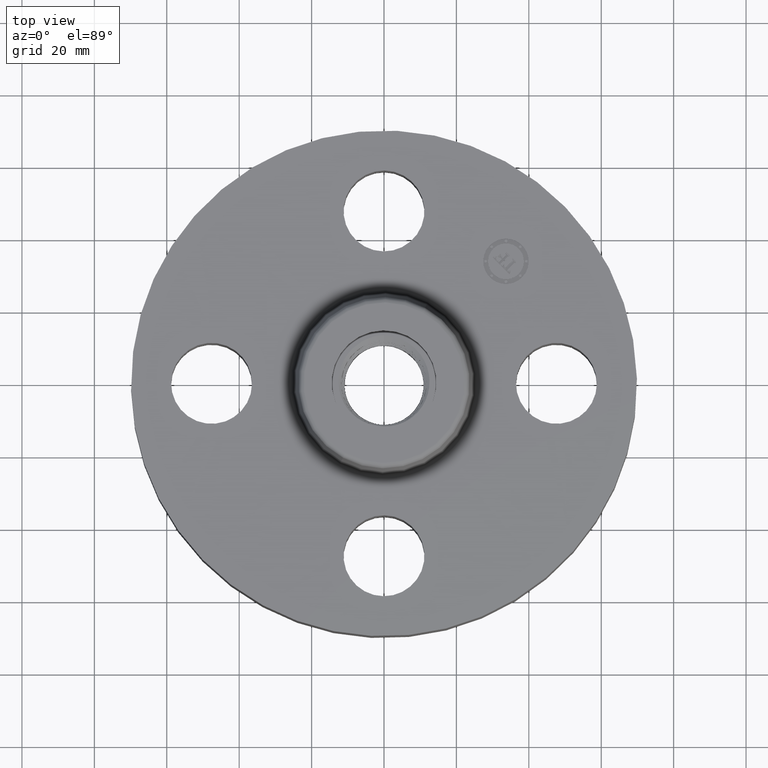
[diagram: clean part render]
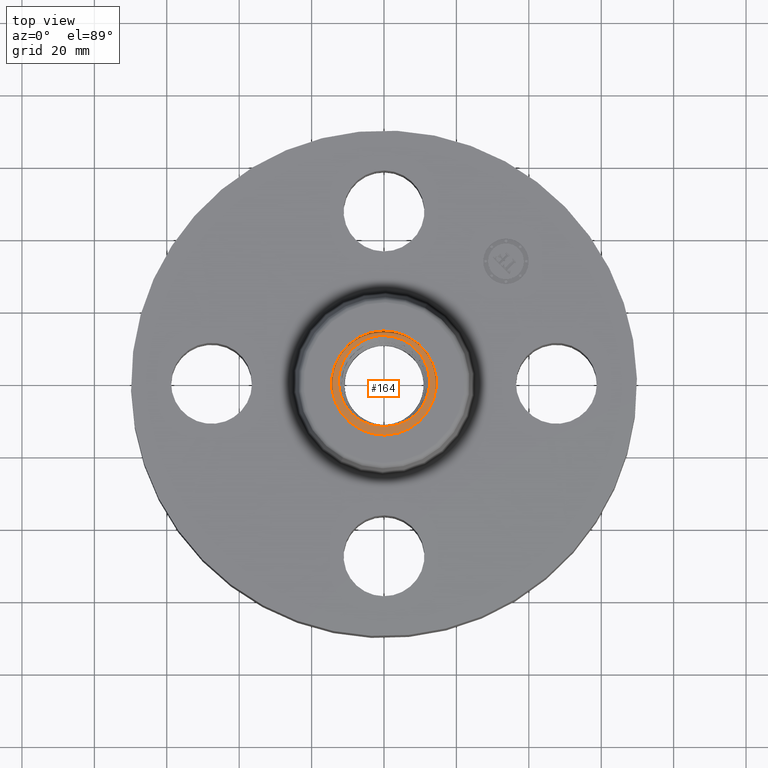
[diagram: same view with one face highlighted and labeled with its STEP entity id]
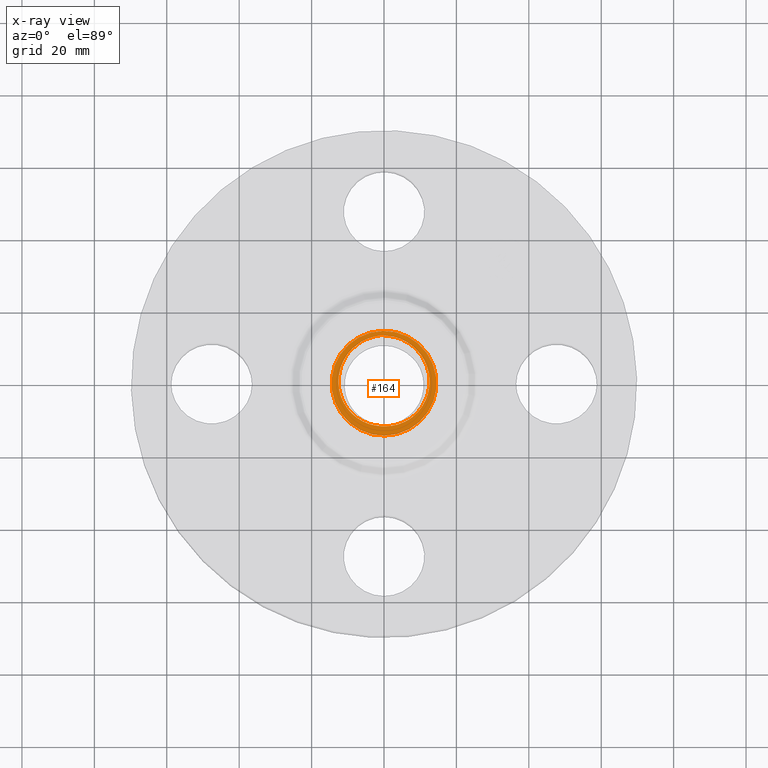
[diagram: x-ray of the same camera — body ghosted, the highlighted face saturated]
A machine part, top view. The second image highlights one B-rep face of the part: STEP entity #164.
The next image is the same camera in x-ray: the body ghosted, the highlighted face saturated — about 0% of this face is hidden behind the body in this view.
In plain terms, the highlighted planar face has unit normal (0, 0, 1).
Its self-contained STEP definition (entity closure, byte-faithful):
#38=AXIS2_PLACEMENT_3D('Plane Axis2P3D',#35,#36,#37) ;
#42=AXIS2_PLACEMENT_3D('Circle Axis2P3D',#40,#41,$) ;
#51=AXIS2_PLACEMENT_3D('Circle Axis2P3D',#49,#50,$) ;
#60=AXIS2_PLACEMENT_3D('Circle Axis2P3D',#58,#59,$) ;
#35=CARTESIAN_POINT('Axis2P3D Location',(1.92322098754E-017,-2.08057543197E-016,1.25000000001)) ;
#40=CARTESIAN_POINT('Axis2P3D Location',(0.,0.,1.25000000001)) ;
#44=CARTESIAN_POINT('Vertex',(-0.273272557005,0.50022206028,1.25000000001)) ;
#46=CARTESIAN_POINT('Vertex',(0.273272557005,-0.50022206028,1.25000000001)) ;
#49=CARTESIAN_POINT('Axis2P3D Location',(0.,0.,1.25000000001)) ;
#58=CARTESIAN_POINT('Axis2P3D Location',(-5.07030987624E-017,7.16836913538E-017,1.25000000001)) ;
#62=CARTESIAN_POINT('Vertex',(-0.069043719654,-0.462157826069,1.25000036715)) ;
#64=CARTESIAN_POINT('Vertex',(-0.000953108750206,-0.467285750138,1.25000000001)) ;
#68=CARTESIAN_POINT('Control Point',(-0.246883430185,0.451920611165,1.25000000001)) ;
#69=CARTESIAN_POINT('Control Point',(-0.286897721288,0.428091764779,1.25000000001)) ;
#70=CARTESIAN_POINT('Control Point',(-0.324134164533,0.39978522905,1.25000000001)) ;
#71=CARTESIAN_POINT('Control Point',(-0.357909097019,0.367424164858,1.25000000001)) ;
#72=CARTESIAN_POINT('Control Point',(-0.41739037116,0.295739702515,1.25000000001)) ;
#73=CARTESIAN_POINT('Control Point',(-0.459012659296,0.212869246546,1.25000000001)) ;
#74=CARTESIAN_POINT('Control Point',(-0.474939777486,0.169300916148,1.25000000001)) ;
#75=CARTESIAN_POINT('Control Point',(-0.494318448314,0.088471184542,1.25000000001)) ;
#76=CARTESIAN_POINT('Control Point',(-0.496710871425,0.00589266827897,1.25000000001)) ;
#77=CARTESIAN_POINT('Control Point',(-0.494375922911,-0.030741260447,1.25000000001)) ;
#78=CARTESIAN_POINT('Control Point',(-0.481550266371,-0.112067598689,1.25000000001)) ;
#79=CARTESIAN_POINT('Control Point',(-0.452253683746,-0.188866047166,1.25000000001)) ;
#80=CARTESIAN_POINT('Control Point',(-0.431112140617,-0.229337546742,1.25000000001)) ;
#81=CARTESIAN_POINT('Control Point',(-0.379905222728,-0.304441643625,1.25000000001)) ;
#82=CARTESIAN_POINT('Control Point',(-0.313085125797,-0.365392447663,1.25000000001)) ;
#83=CARTESIAN_POINT('Control Point',(-0.276305974449,-0.391734973764,1.25000000001)) ;
#84=CARTESIAN_POINT('Control Point',(-0.213661400389,-0.426235955735,1.25000000001)) ;
#85=CARTESIAN_POINT('Control Point',(-0.146262797866,-0.448323542736,1.25000000001)) ;
#86=CARTESIAN_POINT('Control Point',(-0.120794609709,-0.454743018172,1.25000000001)) ;
#87=CARTESIAN_POINT('Control Point',(-0.0949981273021,-0.459359125903,1.25000000001)) ;
#88=CARTESIAN_POINT('Control Point',(-0.0690436256154,-0.462157284984,1.25000000001)) ;
#89=CARTESIAN_POINT('Vertex',(-0.246883430185,0.451920611165,1.25000000001)) ;
#93=CARTESIAN_POINT('Control Point',(-0.0411589334474,0.521391750802,1.25000000001)) ;
#94=CARTESIAN_POINT('Control Point',(-0.0847802820581,0.516338577077,1.25000000001)) ;
#95=CARTESIAN_POINT('Control Point',(-0.12779164867,0.506712849105,1.25000000001)) ;
#96=CARTESIAN_POINT('Control Point',(-0.16955898748,0.492597924966,1.25000000001)) ;
#97=CARTESIAN_POINT('Control Point',(-0.209437574823,0.474219932607,1.25000000001)) ;
#98=CARTESIAN_POINT('Control Point',(-0.246883430185,0.451920611165,1.25000000001)) ;
#99=CARTESIAN_POINT('Vertex',(-0.0411589334474,0.521391750802,1.25000000001)) ;
#103=CARTESIAN_POINT('Control Point',(-0.0411589334474,0.521391750802,1.25000000001)) ;
#104=CARTESIAN_POINT('Control Point',(-0.032929209584,0.521768369736,1.25000000001)) ;
#105=CARTESIAN_POINT('Control Point',(-0.0246945896056,0.521982726487,1.25000000001)) ;
#106=CARTESIAN_POINT('Control Point',(-0.0164537136022,0.522034670769,1.25000000001)) ;
#107=CARTESIAN_POINT('Control Point',(-0.00822208597608,0.521924165125,1.25000000001)) ;
#108=CARTESIAN_POINT('Control Point',(1.67093873352E-006,0.521651506824,1.25000000001)) ;
#109=CARTESIAN_POINT('Vertex',(1.67093873352E-006,0.521651506824,1.25000000001)) ;
#113=CARTESIAN_POINT('Control Point',(1.6709387337E-006,0.521651506824,1.25000000001)) ;
#114=CARTESIAN_POINT('Control Point',(0.0468493230862,0.52009827512,1.25000000001)) ;
#115=CARTESIAN_POINT('Control Point',(0.0934415687471,0.513282924589,1.25000000001)) ;
#116=CARTESIAN_POINT('Control Point',(0.138981222859,0.501241990652,1.25000000001)) ;
#117=CARTESIAN_POINT('Control Point',(0.22638961111,0.467153776499,1.25000000001)) ;
#118=CARTESIAN_POINT('Control Point',(0.303671333594,0.41458072775,1.25000000001)) ;
#119=CARTESIAN_POINT('Control Point',(0.339089080915,0.384049831905,1.25000000001)) ;
#120=CARTESIAN_POINT('Control Point',(0.402222762938,0.315611594596,1.25000000001)) ;
#121=CARTESIAN_POINT('Control Point',(0.448151534748,0.234985222951,1.25000000001)) ;
#122=CARTESIAN_POINT('Control Point',(0.466347279329,0.192284693691,1.25000000001)) ;
#123=CARTESIAN_POINT('Control Point',(0.492562463886,0.103646624216,1.25000000001)) ;
#124=CARTESIAN_POINT('Control Point',(0.497939646286,0.0117346801337,1.25000000001)) ;
#125=CARTESIAN_POINT('Control Point',(0.495292596879,-0.0342253818552,1.25000000001)) ;
#126=CARTESIAN_POINT('Control Point',(0.479459557049,-0.124516642352,1.25000000001)) ;
#127=CARTESIAN_POINT('Control Point',(0.443535288869,-0.208439258804,1.25000000001)) ;
#128=CARTESIAN_POINT('Control Point',(0.420791070077,-0.248042548364,1.25000000001)) ;
#129=CARTESIAN_POINT('Control Point',(0.373347643186,-0.311981393507,1.25000000001)) ;
#130=CARTESIAN_POINT('Control Point',(0.314311753566,-0.364651386659,1.25000000001)) ;
#131=CARTESIAN_POINT('Control Point',(0.287099888359,-0.384918853764,1.25000000001)) ;
#132=CARTESIAN_POINT('Control Point',(0.258285343972,-0.4026539621,1.25000000001)) ;
#133=CARTESIAN_POINT('Control Point',(0.228189098875,-0.417703174313,1.25000000001)) ;
#134=CARTESIAN_POINT('Vertex',(0.228189098875,-0.417703174313,1.25000000001)) ;
#138=CARTESIAN_POINT('Control Point',(0.228189098875,-0.417703174313,1.25000000001)) ;
#139=CARTESIAN_POINT('Control Point',(0.185782158035,-0.438908179948,1.25000000001)) ;
#140=CARTESIAN_POINT('Control Point',(0.140830494015,-0.454780630068,1.25000000001)) ;
#141=CARTESIAN_POINT('Control Point',(0.09420246089,-0.464899658035,1.25000000001)) ;
#142=CARTESIAN_POINT('Control Point',(0.046933993562,-0.469059155098,1.25000000001)) ;
#143=CARTESIAN_POINT('Control Point',(-3.28525675362E-006,-0.467321873785,1.25000000001)) ;
#144=CARTESIAN_POINT('Vertex',(-3.28525675357E-006,-0.467321873785,1.25000000001)) ;
#148=CARTESIAN_POINT('Control Point',(-3.28525675338E-006,-0.467321873785,1.25000000001)) ;
#149=CARTESIAN_POINT('Control Point',(-0.000193260791141,-0.467314842253,1.25000000001)) ;
#150=CARTESIAN_POINT('Control Point',(-0.000383230899488,-0.467307714122,1.25000000001)) ;
#151=CARTESIAN_POINT('Control Point',(-0.000573195592419,-0.467300489388,1.25000000001)) ;
#152=CARTESIAN_POINT('Control Point',(-0.000763154874465,-0.467293168049,1.25000000001)) ;
#153=CARTESIAN_POINT('Control Point',(-0.000953108744387,-0.467285750105,1.25000000001)) ;
#36=DIRECTION('Axis2P3D Direction',(0.,0.,0.0393700787402)) ;
#37=DIRECTION('Axis2P3D XDirection',(0.0393700787402,0.,0.)) ;
#41=DIRECTION('Axis2P3D Direction',(0.,0.,0.0393700787402)) ;
#50=DIRECTION('Axis2P3D Direction',(0.,0.,0.0393700787402)) ;
#59=DIRECTION('Axis2P3D Direction',(0.,0.,0.0393700787402)) ;
#55=ORIENTED_EDGE('',*,*,#48,.T.) ;
#56=ORIENTED_EDGE('',*,*,#53,.T.) ;
#156=ORIENTED_EDGE('',*,*,#66,.F.) ;
#157=ORIENTED_EDGE('',*,*,#91,.F.) ;
#158=ORIENTED_EDGE('',*,*,#101,.F.) ;
#159=ORIENTED_EDGE('',*,*,#111,.T.) ;
#160=ORIENTED_EDGE('',*,*,#136,.T.) ;
#161=ORIENTED_EDGE('',*,*,#146,.T.) ;
#162=ORIENTED_EDGE('',*,*,#154,.T.) ;
#163=FACE_BOUND('',#155,.T.) ;
#164=ADVANCED_FACE('PartBody',(#57,#163),#39,.T.) ;
#67=B_SPLINE_CURVE_WITH_KNOTS('',5,(#68,#69,#70,#71,#72,#73,#74,#75,#76,#77,#78,#79,#80,#81,#82,#83,#84,#85,#86,#87,#88),.UNSPECIFIED.,.F.,.U.,(6,3,3,3,3,3,6),(0.,8.21041055809,16.4250506763,22.9958656265,31.2089603934,39.428821391,44.2672554149),.UNSPECIFIED.) ;
#92=B_SPLINE_CURVE_WITH_KNOTS('',5,(#93,#94,#95,#96,#97,#98),.UNSPECIFIED.,.F.,.U.,(6,6),(0.,7.68340105816),.UNSPECIFIED.) ;
#102=B_SPLINE_CURVE_WITH_KNOTS('',5,(#103,#104,#105,#106,#107,#108),.UNSPECIFIED.,.F.,.U.,(6,6),(0.,1.44140463103),.UNSPECIFIED.) ;
#112=B_SPLINE_CURVE_WITH_KNOTS('',5,(#113,#114,#115,#116,#117,#118,#119,#120,#121,#122,#123,#124,#125,#126,#127,#128,#129,#130,#131,#132,#133),.UNSPECIFIED.,.F.,.U.,(6,3,3,3,3,3,6),(0.,8.2111404126,16.4232578967,24.630292993,32.8342464431,41.0404883096,47.2035261067),.UNSPECIFIED.) ;
#137=B_SPLINE_CURVE_WITH_KNOTS('',5,(#138,#139,#140,#141,#142,#143),.UNSPECIFIED.,.F.,.U.,(6,6),(0.,8.68399290458),.UNSPECIFIED.) ;
#147=B_SPLINE_CURVE_WITH_KNOTS('',5,(#148,#149,#150,#151,#152,#153),.UNSPECIFIED.,.F.,.U.,(6,6),(0.,0.0351478874456),.UNSPECIFIED.) ;
#43=CIRCLE('generated circle',#42,0.570000000002) ;
#52=CIRCLE('generated circle',#51,0.570000000002) ;
#61=CIRCLE('generated circle',#60,0.46728672215) ;
#48=EDGE_CURVE('',#45,#47,#43,.T.) ;
#53=EDGE_CURVE('',#47,#45,#52,.T.) ;
#66=EDGE_CURVE('',#63,#65,#61,.T.) ;
#91=EDGE_CURVE('',#90,#63,#67,.T.) ;
#101=EDGE_CURVE('',#100,#90,#92,.T.) ;
#111=EDGE_CURVE('',#100,#110,#102,.T.) ;
#136=EDGE_CURVE('',#110,#135,#112,.T.) ;
#146=EDGE_CURVE('',#135,#145,#137,.T.) ;
#154=EDGE_CURVE('',#145,#65,#147,.T.) ;
#54=EDGE_LOOP('',(#55,#56)) ;
#155=EDGE_LOOP('',(#156,#157,#158,#159,#160,#161,#162)) ;
#57=FACE_OUTER_BOUND('',#54,.T.) ;
#39=PLANE('',#38) ;
#45=VERTEX_POINT('',#44) ;
#47=VERTEX_POINT('',#46) ;
#63=VERTEX_POINT('',#62) ;
#65=VERTEX_POINT('',#64) ;
#90=VERTEX_POINT('',#89) ;
#100=VERTEX_POINT('',#99) ;
#110=VERTEX_POINT('',#109) ;
#135=VERTEX_POINT('',#134) ;
#145=VERTEX_POINT('',#144) ;